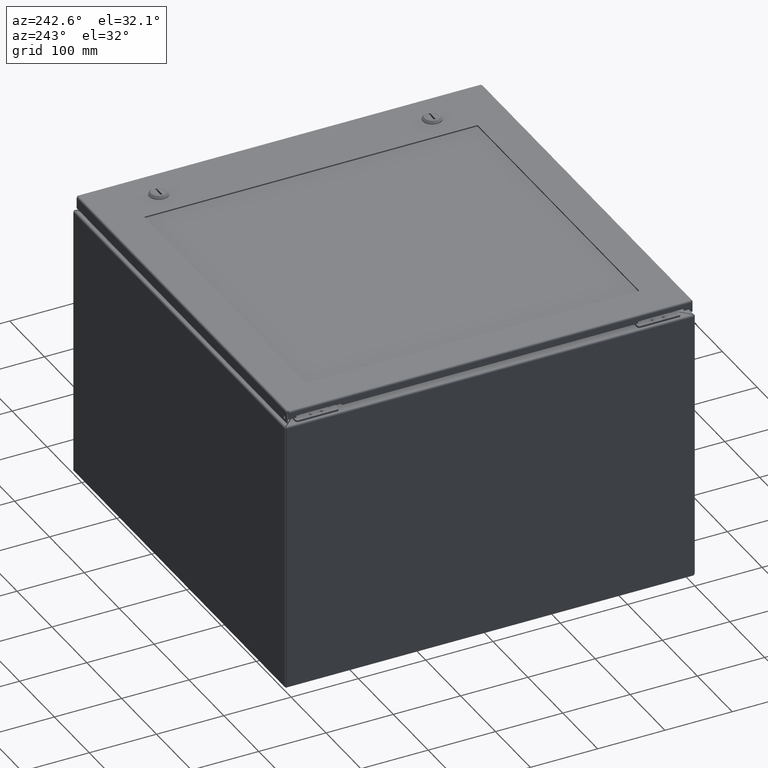
[diagram: clean part render]
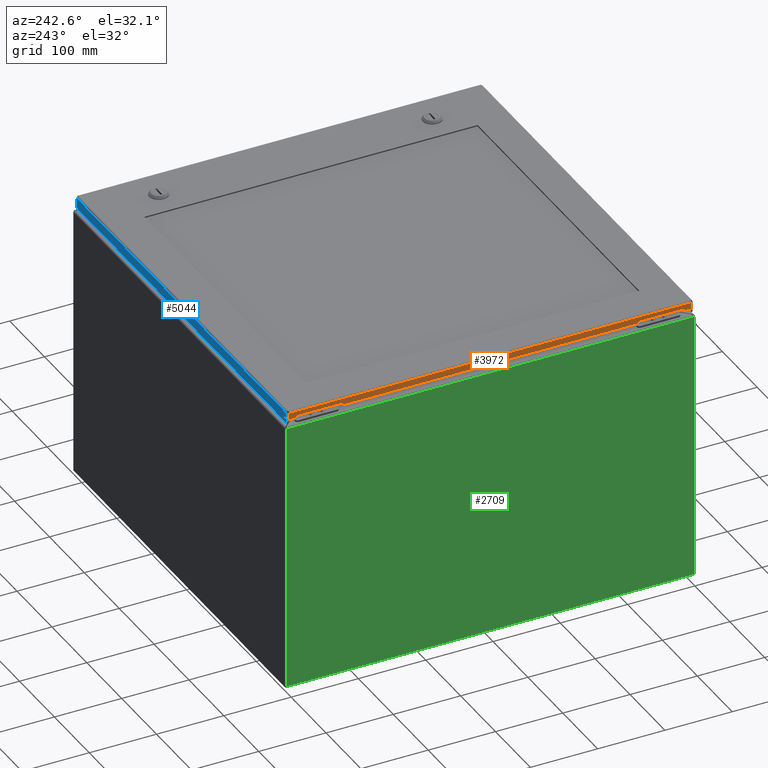
[diagram: same view with three faces highlighted in distinct colors, each labeled with its STEP entity id]
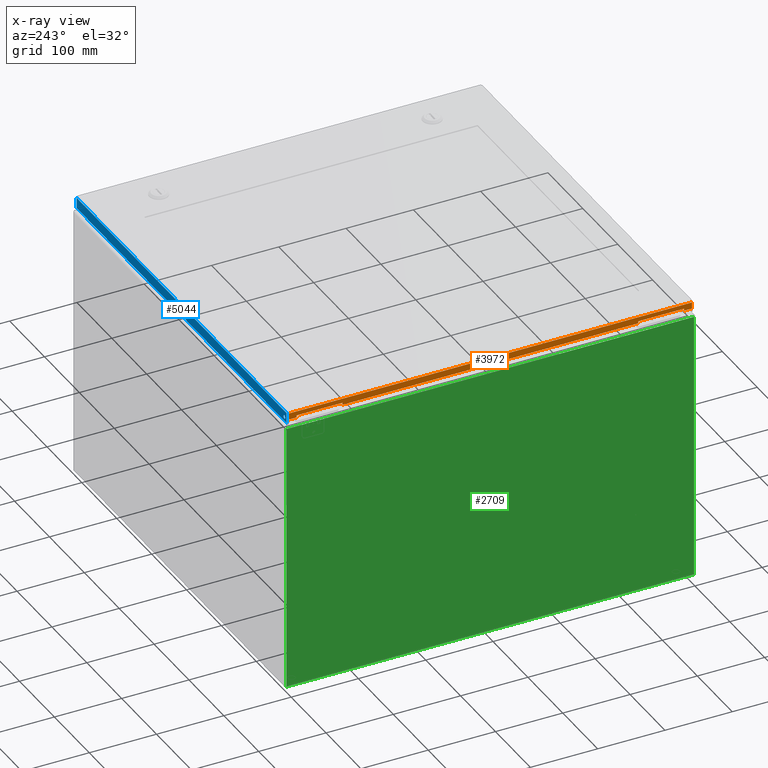
[diagram: x-ray of the same camera — body ghosted, the three highlighted faces saturated]
A machine part, auxiliary view with three faces highlighted in distinct colors.
The next image is the same camera in x-ray (body ghosted, the three faces saturated) — at least one of them is partly hidden behind the body in this view.
Their STEP definitions:

[orange] entity #3972 — the highlighted planar face has unit normal (1, 0, -0).
#3661=CARTESIAN_POINT('',(23.874999999999996,0.085048543456039,0.480000000000010));
#3662=VERTEX_POINT('',#3661);
#3669=CARTESIAN_POINT('',(23.874999999999996,0.532000000000000,0.480000000000004));
#3670=VERTEX_POINT('',#3669);
#3671=CARTESIAN_POINT('',(23.874999999999996,0.532000000000000,0.480000000000004));
#3672=DIRECTION('',(0.0,-1.0,0.0));
#3673=VECTOR('',#3672,0.446951456543960);
#3674=LINE('',#3671,#3673);
#3675=EDGE_CURVE('',#3670,#3662,#3674,.T.);
#3700=CARTESIAN_POINT('',(23.874999999999996,0.532000000000000,0.355000000000004));
#3701=VERTEX_POINT('',#3700);
#3702=CARTESIAN_POINT('',(23.874999999999996,0.532000000000000,0.355000000000004));
#3703=DIRECTION('',(0.0,0.0,1.0));
#3704=VECTOR('',#3703,0.125000000000000);
#3705=LINE('',#3702,#3704);
#3706=EDGE_CURVE('',#3701,#3670,#3705,.T.);
#3731=CARTESIAN_POINT('',(23.874999999999996,3.219000000000001,0.355000000000004));
#3732=VERTEX_POINT('',#3731);
#3733=CARTESIAN_POINT('',(23.874999999999996,3.219000000000001,0.355000000000004));
#3734=DIRECTION('',(0.0,-1.0,0.0));
#3735=VECTOR('',#3734,2.687000000000000);
#3736=LINE('',#3733,#3735);
#3737=EDGE_CURVE('',#3732,#3701,#3736,.T.);
#3762=CARTESIAN_POINT('',(23.874999999999996,3.219000000000001,0.480000000000004));
#3763=VERTEX_POINT('',#3762);
#3764=CARTESIAN_POINT('',(23.874999999999996,3.219000000000000,0.480000000000004));
#3765=DIRECTION('',(0.0,0.0,-1.0));
#3766=VECTOR('',#3765,0.125000000000000);
#3767=LINE('',#3764,#3766);
#3768=EDGE_CURVE('',#3763,#3732,#3767,.T.);
#3793=CARTESIAN_POINT('',(23.874999999999993,20.530999999999985,0.480000000000007));
#3794=VERTEX_POINT('',#3793);
#3795=CARTESIAN_POINT('',(23.874999999999993,20.530999999999985,0.480000000000007));
#3796=DIRECTION('',(0.0,-1.0,0.0));
#3797=VECTOR('',#3796,17.311999999999983);
#3798=LINE('',#3795,#3797);
#3799=EDGE_CURVE('',#3794,#3763,#3798,.T.);
#3824=CARTESIAN_POINT('',(23.874999999999993,20.530999999999985,0.355000000000004));
#3825=VERTEX_POINT('',#3824);
#3826=CARTESIAN_POINT('',(23.874999999999993,20.530999999999985,0.355000000000004));
#3827=DIRECTION('',(0.0,0.0,1.0));
#3828=VECTOR('',#3827,0.125000000000002);
#3829=LINE('',#3826,#3828);
#3830=EDGE_CURVE('',#3825,#3794,#3829,.T.);
#3855=CARTESIAN_POINT('',(23.874999999999993,23.217999999999986,0.355000000000004));
#3856=VERTEX_POINT('',#3855);
#3857=CARTESIAN_POINT('',(23.874999999999996,23.217999999999989,0.355000000000004));
#3858=DIRECTION('',(0.0,-1.0,0.0));
#3859=VECTOR('',#3858,2.687000000000005);
#3860=LINE('',#3857,#3859);
#3861=EDGE_CURVE('',#3856,#3825,#3860,.T.);
#3886=CARTESIAN_POINT('',(23.874999999999993,23.217999999999986,0.480000000000007));
#3887=VERTEX_POINT('',#3886);
#3888=CARTESIAN_POINT('',(23.874999999999993,23.217999999999986,0.480000000000007));
#3889=DIRECTION('',(0.0,0.0,-1.0));
#3890=VECTOR('',#3889,0.125000000000003);
#3891=LINE('',#3888,#3890);
#3892=EDGE_CURVE('',#3887,#3856,#3891,.T.);
#3917=CARTESIAN_POINT('',(23.874999999999993,23.664951456543967,0.480000000000007));
#3918=VERTEX_POINT('',#3917);
#3919=CARTESIAN_POINT('',(23.874999999999996,23.664951456543967,0.480000000000007));
#3920=DIRECTION('',(0.0,-1.0,0.0));
#3921=VECTOR('',#3920,0.446951456543978);
#3922=LINE('',#3919,#3921);
#3923=EDGE_CURVE('',#3918,#3887,#3922,.T.);
#3934=CARTESIAN_POINT('',(23.874999999999996,11.875000000000002,0.374748932821486));
#3935=DIRECTION('',(-1.0,0.0,0.0));
#3936=DIRECTION('',(0.0,0.0,1.0));
#3937=AXIS2_PLACEMENT_3D('',#3934,#3935,#3936);
#3938=PLANE('',#3937);
#3939=ORIENTED_EDGE('',*,*,#3923,.T.);
#3940=ORIENTED_EDGE('',*,*,#3892,.T.);
#3941=ORIENTED_EDGE('',*,*,#3861,.T.);
#3942=ORIENTED_EDGE('',*,*,#3830,.T.);
#3943=ORIENTED_EDGE('',*,*,#3799,.T.);
#3944=ORIENTED_EDGE('',*,*,#3768,.T.);
#3945=ORIENTED_EDGE('',*,*,#3737,.T.);
#3946=ORIENTED_EDGE('',*,*,#3706,.T.);
#3947=ORIENTED_EDGE('',*,*,#3675,.T.);
#3948=CARTESIAN_POINT('',(23.874999999999996,0.085048543456038,0.105250000000007));
#3949=VERTEX_POINT('',#3948);
#3950=CARTESIAN_POINT('',(23.874999999999993,0.085048543456035,0.105250000000007));
#3951=DIRECTION('',(0.0,0.0,1.0));
#3952=VECTOR('',#3951,0.374750000000003);
#3953=LINE('',#3950,#3952);
#3954=EDGE_CURVE('',#3949,#3662,#3953,.T.);
#3955=ORIENTED_EDGE('',*,*,#3954,.F.);
#3956=CARTESIAN_POINT('',(23.874999999999993,23.664951456543967,0.105250000000001));
#3957=VERTEX_POINT('',#3956);
#3958=CARTESIAN_POINT('',(23.875000000000000,0.085048543456038,0.105250000000001));
#3959=DIRECTION('',(0.0,1.0,0.0));
#3960=VECTOR('',#3959,23.579902913087928);
#3961=LINE('',#3958,#3960);
#3962=EDGE_CURVE('',#3949,#3957,#3961,.T.);
#3963=ORIENTED_EDGE('',*,*,#3962,.T.);
#3964=CARTESIAN_POINT('',(23.874999999999989,23.664951456543967,0.480000000000007));
#3965=DIRECTION('',(0.0,0.0,-1.0));
#3966=VECTOR('',#3965,0.374750000000006);
#3967=LINE('',#3964,#3966);
#3968=EDGE_CURVE('',#3918,#3957,#3967,.T.);
#3969=ORIENTED_EDGE('',*,*,#3968,.F.);
#3970=EDGE_LOOP('',(#3939,#3940,#3941,#3942,#3943,#3944,#3945,#3946,#3947,#3955,#3963,#3969));
#3971=FACE_OUTER_BOUND('',#3970,.T.);
#3972=ADVANCED_FACE('',(#3971),#3938,.F.);

[blue] entity #5044 — the highlighted planar face has unit normal (0, -1, 0).
#4034=CARTESIAN_POINT('',(23.633951456543961,23.750000000000007,0.480000000000002));
#4035=VERTEX_POINT('',#4034);
#4036=CARTESIAN_POINT('',(23.539951456543964,23.750000000000007,0.480000000000002));
#4037=DIRECTION('',(0.0,-1.0,0.0));
#4038=DIRECTION('',(-1.0,0.0,0.0));
#4039=AXIS2_PLACEMENT_3D('',#4036,#4037,#4038);
#4040=CIRCLE('',#4039,0.094000000000000);
#4041=EDGE_CURVE('',#4035,#4035,#4040,.T.);
#4799=CARTESIAN_POINT('',(23.789951456543964,23.750000000000007,0.105250000000004));
#4800=VERTEX_POINT('',#4799);
#4801=CARTESIAN_POINT('',(0.085048543456037,23.750000000000004,0.105250000000001));
#4802=VERTEX_POINT('',#4801);
#4803=CARTESIAN_POINT('',(23.789951456543964,23.750000000000007,0.105249999999998));
#4804=DIRECTION('',(-1.0,0.0,0.0));
#4805=VECTOR('',#4804,23.704902913087928);
#4806=LINE('',#4803,#4805);
#4807=EDGE_CURVE('',#4800,#4802,#4806,.T.);
#4886=CARTESIAN_POINT('',(0.085048543456028,23.750000000000004,0.730000000000000));
#4887=VERTEX_POINT('',#4886);
#4888=CARTESIAN_POINT('',(0.085048543456028,23.750000000000004,0.730000000000000));
#4889=DIRECTION('',(0.0,0.0,-1.0));
#4890=VECTOR('',#4889,0.624749999999998);
#4891=LINE('',#4888,#4890);
#4892=EDGE_CURVE('',#4887,#4802,#4891,.T.);
#4994=CARTESIAN_POINT('',(23.789951456543957,23.750000000000007,0.730000000000002));
#4995=VERTEX_POINT('',#4994);
#4996=CARTESIAN_POINT('',(23.789951456543957,23.750000000000004,0.105250000000004));
#4997=DIRECTION('',(0.0,0.0,1.0));
#4998=VECTOR('',#4997,0.624749999999999);
#4999=LINE('',#4996,#4998);
#5000=EDGE_CURVE('',#4800,#4995,#4999,.T.);
#5018=CARTESIAN_POINT('',(23.789951456543957,23.750000000000007,0.730000000000002));
#5019=DIRECTION('',(-1.0,0.0,0.0));
#5020=VECTOR('',#5019,23.704902913087928);
#5021=LINE('',#5018,#5020);
#5022=EDGE_CURVE('',#4995,#4887,#5021,.T.);
#5030=CARTESIAN_POINT('',(11.937499999999996,23.750000000000004,0.374747570757037));
#5031=DIRECTION('',(0.0,-1.0,0.0));
#5032=DIRECTION('',(1.0,0.0,0.0));
#5033=AXIS2_PLACEMENT_3D('',#5030,#5031,#5032);
#5034=PLANE('',#5033);
#5035=ORIENTED_EDGE('',*,*,#4807,.T.);
#5036=ORIENTED_EDGE('',*,*,#4892,.F.);
#5037=ORIENTED_EDGE('',*,*,#5022,.F.);
#5038=ORIENTED_EDGE('',*,*,#5000,.F.);
#5039=EDGE_LOOP('',(#5035,#5036,#5037,#5038));
#5040=FACE_OUTER_BOUND('',#5039,.T.);
#5041=ORIENTED_EDGE('',*,*,#4041,.T.);
#5042=EDGE_LOOP('',(#5041));
#5043=FACE_BOUND('',#5042,.T.);
#5044=ADVANCED_FACE('',(#5040,#5043),#5034,.F.);

[green] entity #2709 — the highlighted planar face has unit normal (1, 0, 0).
#1742=CARTESIAN_POINT('',(23.852000000000000,-4.016131E-015,15.894750000000005));
#1743=VERTEX_POINT('',#1742);
#2017=CARTESIAN_POINT('',(1.448797E-021,-4.016131E-015,15.894750000000005));
#2018=VERTEX_POINT('',#2017);
#2026=CARTESIAN_POINT('',(23.852000000000004,-4.016248E-015,15.894750000000005));
#2027=DIRECTION('',(-1.0,0.0,0.0));
#2028=VECTOR('',#2027,23.852000000000004);
#2029=LINE('',#2026,#2028);
#2030=EDGE_CURVE('',#1743,#2018,#2029,.T.);
#2349=CARTESIAN_POINT('',(-1.233612E-035,1.567728E-015,0.105250000000000));
#2350=VERTEX_POINT('',#2349);
#2357=CARTESIAN_POINT('',(-1.233612E-035,1.567728E-015,0.105250000000000));
#2358=DIRECTION('',(0.0,0.0,1.0));
#2359=VECTOR('',#2358,15.789500000000004);
#2360=LINE('',#2357,#2359);
#2361=EDGE_CURVE('',#2350,#2018,#2360,.T.);
#2396=CARTESIAN_POINT('',(23.852000000000000,1.567728E-015,0.105250000000000));
#2397=VERTEX_POINT('',#2396);
#2398=CARTESIAN_POINT('',(23.852000000000000,-3.066382E-015,15.894750000000005));
#2399=DIRECTION('',(0.0,0.0,-1.0));
#2400=VECTOR('',#2399,15.789500000000006);
#2401=LINE('',#2398,#2400);
#2402=EDGE_CURVE('',#1743,#2397,#2401,.T.);
#2615=CARTESIAN_POINT('',(0.0,1.578889E-015,0.105250000000000));
#2616=DIRECTION('',(1.0,0.0,0.0));
#2617=VECTOR('',#2616,23.852000000000004);
#2618=LINE('',#2615,#2617);
#2619=EDGE_CURVE('',#2350,#2397,#2618,.T.);
#2698=CARTESIAN_POINT('',(11.925999999999995,-3.893120E-014,-11.889732513612785));
#2699=DIRECTION('',(0.0,1.0,0.0));
#2700=DIRECTION('',(1.0,0.0,0.0));
#2701=AXIS2_PLACEMENT_3D('',#2698,#2699,#2700);
#2702=PLANE('',#2701);
#2703=ORIENTED_EDGE('',*,*,#2030,.T.);
#2704=ORIENTED_EDGE('',*,*,#2361,.F.);
#2705=ORIENTED_EDGE('',*,*,#2619,.T.);
#2706=ORIENTED_EDGE('',*,*,#2402,.F.);
#2707=EDGE_LOOP('',(#2703,#2704,#2705,#2706));
#2708=FACE_OUTER_BOUND('',#2707,.T.);
#2709=ADVANCED_FACE('',(#2708),#2702,.F.);